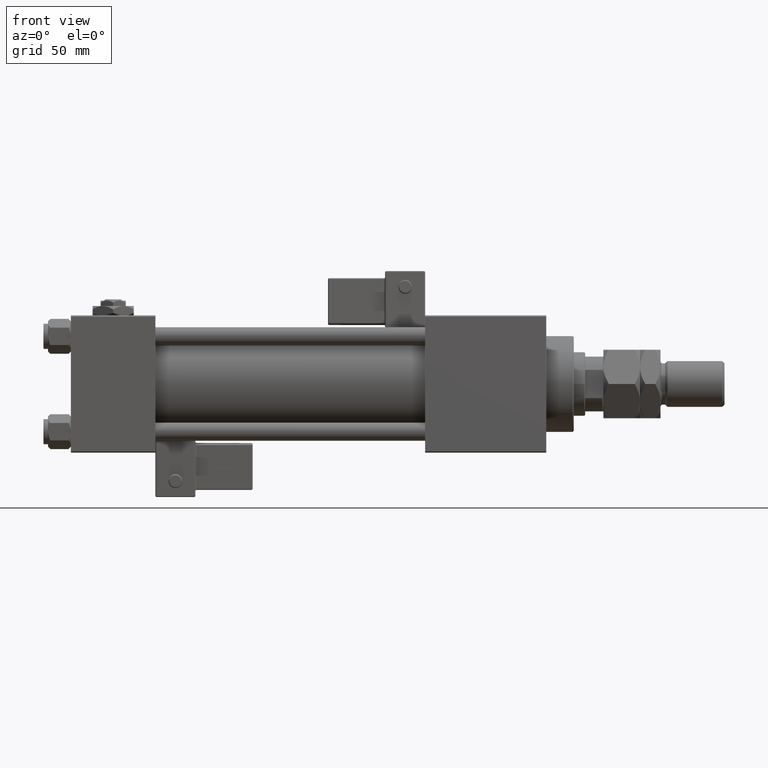
[diagram: clean part render]
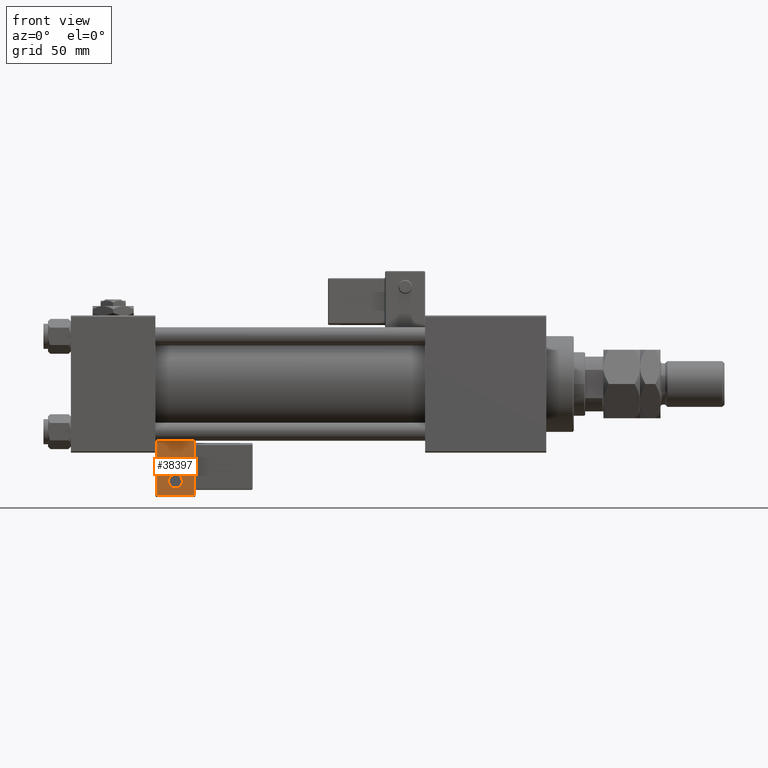
[diagram: same view with one face highlighted and labeled with its STEP entity id]
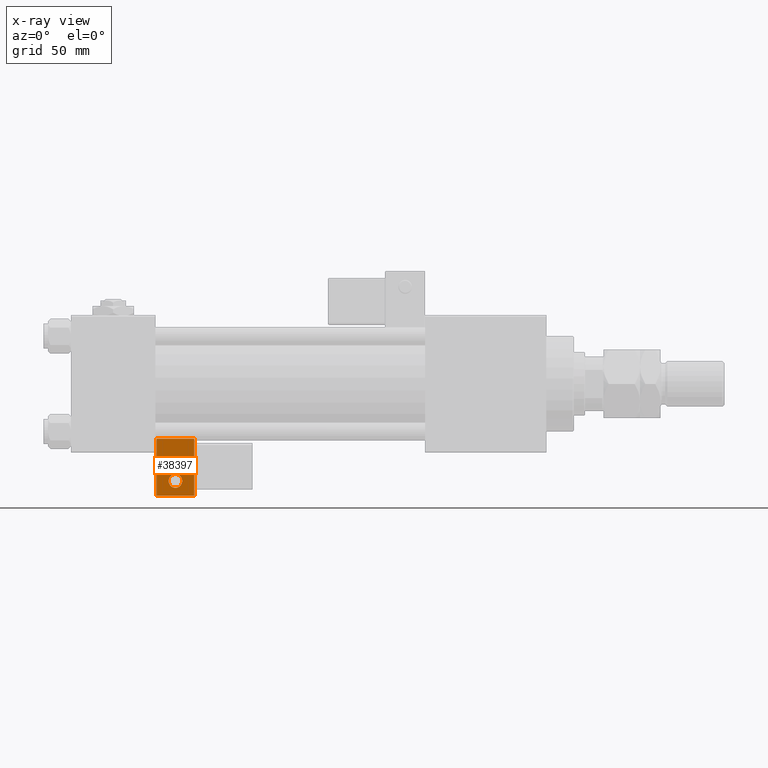
[diagram: x-ray of the same camera — body ghosted, the highlighted face saturated]
A machine part, front view. The second image highlights one B-rep face of the part: STEP entity #38397.
The next image is the same camera in x-ray: the body ghosted, the highlighted face saturated — about 0% of this face is hidden behind the body in this view.
In plain terms, the highlighted planar face has unit normal (0, 0.9994, 0.0353).
Its self-contained STEP definition (entity closure, byte-faithful):
#234 = CARTESIAN_POINT ( 'NONE',  ( 0.000000000000000000, -35.75000000000000000, -0.5000000000000002220 ) ) ;
#276 = FACE_OUTER_BOUND ( 'NONE', #35550, .T. ) ;
#898 = VERTEX_POINT ( 'NONE', #15698 ) ;
#4450 = EDGE_CURVE ( 'NONE', #11958, #36826, #47183, .T. ) ;
#4476 = LINE ( 'NONE', #234, #12032 ) ;
#4598 = CARTESIAN_POINT ( 'NONE',  ( -4.336808689942017736E-16, -35.75000000000000000, 9.000000000000001776 ) ) ;
#5859 = DIRECTION ( 'NONE',  ( 1.000000000000000000, 0.000000000000000000, 0.000000000000000000 ) ) ;
#6396 = LINE ( 'NONE', #11492, #50692 ) ;
#6785 = EDGE_CURVE ( 'NONE', #29620, #7265, #4476, .T. ) ;
#7265 = VERTEX_POINT ( 'NONE', #37494 ) ;
#9473 = EDGE_CURVE ( 'NONE', #36826, #11958, #10295, .T. ) ;
#9649 = VERTEX_POINT ( 'NONE', #49692 ) ;
#10066 = DIRECTION ( 'NONE',  ( -1.000000000000000000, 0.000000000000000000, 1.982541115402065110E-16 ) ) ;
#10295 = CIRCLE ( 'NONE', #48305, 2.999999999999999112 ) ;
#10538 = ORIENTED_EDGE ( 'NONE', *, *, #9473, .F. ) ;
#11492 = CARTESIAN_POINT ( 'NONE',  ( -8.250000000000003553, -35.75000000000000000, 1.100882205908358788E-15 ) ) ;
#11958 = VERTEX_POINT ( 'NONE', #14739 ) ;
#12032 = VECTOR ( 'NONE', #5859, 1000.000000000000000 ) ;
#12645 = ORIENTED_EDGE ( 'NONE', *, *, #6785, .T. ) ;
#13293 = FACE_BOUND ( 'NONE', #33313, .T. ) ;
#14739 = CARTESIAN_POINT ( 'NONE',  ( -6.628682924999581145E-17, -35.75000000000000000, 3.000000000000001776 ) ) ;
#15698 = CARTESIAN_POINT ( 'NONE',  ( 8.250000000000000000, -35.75000000000000000, 24.50000000000000000 ) ) ;
#17339 = AXIS2_PLACEMENT_3D ( 'NONE', #17756, #39826, #21725 ) ;
#17756 = CARTESIAN_POINT ( 'NONE',  ( -4.336808689942017736E-16, -35.75000000000000000, 6.000000000000001776 ) ) ;
#18360 = VECTOR ( 'NONE', #24044, 1000.000000000000000 ) ;
#21707 = DIRECTION ( 'NONE',  ( 0.000000000000000000, 0.000000000000000000, 1.000000000000000000 ) ) ;
#21725 = DIRECTION ( 'NONE',  ( 0.000000000000000000, 0.000000000000000000, 1.000000000000000000 ) ) ;
#21793 = DIRECTION ( 'NONE',  ( 0.000000000000000000, -0.000000000000000000, 1.000000000000000000 ) ) ;
#22804 = CARTESIAN_POINT ( 'NONE',  ( 4.857225732735059864E-15, -35.75000000000000000, 24.50000000000000000 ) ) ;
#23098 = EDGE_CURVE ( 'NONE', #7265, #898, #28859, .T. ) ;
#24044 = DIRECTION ( 'NONE',  ( -1.334402673828313339E-16, 0.000000000000000000, 1.000000000000000000 ) ) ;
#26859 = CARTESIAN_POINT ( 'NONE',  ( 0.000000000000000000, -35.75000000000000000, 0.000000000000000000 ) ) ;
#28622 = VECTOR ( 'NONE', #10066, 1000.000000000000000 ) ;
#28859 = LINE ( 'NONE', #46432, #18360 ) ;
#29620 = VERTEX_POINT ( 'NONE', #47686 ) ;
#31390 = PLANE ( 'NONE',  #55968 ) ;
#33313 = EDGE_LOOP ( 'NONE', ( #10538, #55469 ) ) ;
#34486 = EDGE_CURVE ( 'NONE', #898, #9649, #36942, .T. ) ;
#34976 = ORIENTED_EDGE ( 'NONE', *, *, #49898, .T. ) ;
#35550 = EDGE_LOOP ( 'NONE', ( #52006, #34976, #12645, #40978 ) ) ;
#36826 = VERTEX_POINT ( 'NONE', #4598 ) ;
#36942 = LINE ( 'NONE', #22804, #28622 ) ;
#37494 = CARTESIAN_POINT ( 'NONE',  ( 8.250000000000003553, -35.75000000000000000, -0.5000000000000002220 ) ) ;
#38397 = ADVANCED_FACE ( 'NONE', ( #276, #13293 ), #31390, .F. ) ;
#39614 = DIRECTION ( 'NONE',  ( 0.000000000000000000, 1.000000000000000000, 0.000000000000000000 ) ) ;
#39826 = DIRECTION ( 'NONE',  ( -0.000000000000000000, -1.000000000000000000, -0.000000000000000000 ) ) ;
#40978 = ORIENTED_EDGE ( 'NONE', *, *, #23098, .T. ) ;
#45494 = DIRECTION ( 'NONE',  ( -1.334402673828313093E-16, 0.000000000000000000, -1.000000000000000000 ) ) ;
#46432 = CARTESIAN_POINT ( 'NONE',  ( 8.250000000000003553, -35.75000000000000000, 1.100882205908358986E-15 ) ) ;
#47183 = CIRCLE ( 'NONE', #17339, 2.999999999999999112 ) ;
#47495 = CARTESIAN_POINT ( 'NONE',  ( -4.336808689942017736E-16, -35.75000000000000000, 6.000000000000001776 ) ) ;
#47686 = CARTESIAN_POINT ( 'NONE',  ( -8.250000000000003553, -35.75000000000000000, -0.5000000000000002220 ) ) ;
#48305 = AXIS2_PLACEMENT_3D ( 'NONE', #47495, #55985, #21707 ) ;
#49692 = CARTESIAN_POINT ( 'NONE',  ( -8.250000000000000000, -35.75000000000000000, 24.50000000000000355 ) ) ;
#49898 = EDGE_CURVE ( 'NONE', #9649, #29620, #6396, .T. ) ;
#50692 = VECTOR ( 'NONE', #45494, 1000.000000000000000 ) ;
#52006 = ORIENTED_EDGE ( 'NONE', *, *, #34486, .T. ) ;
#55469 = ORIENTED_EDGE ( 'NONE', *, *, #4450, .F. ) ;
#55968 = AXIS2_PLACEMENT_3D ( 'NONE', #26859, #39614, #21793 ) ;
#55985 = DIRECTION ( 'NONE',  ( -0.000000000000000000, -1.000000000000000000, -0.000000000000000000 ) ) ;